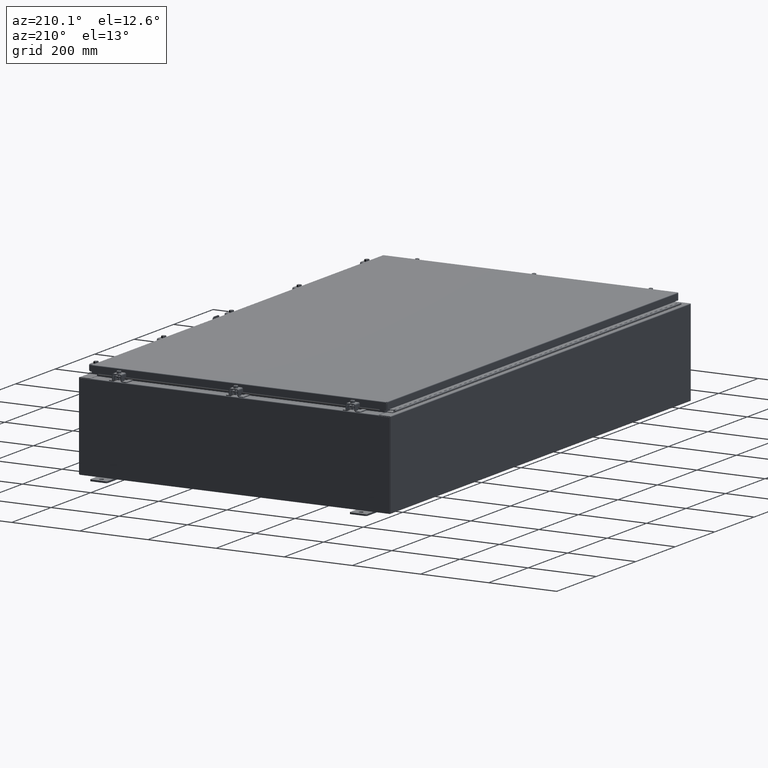
[diagram: clean part render]
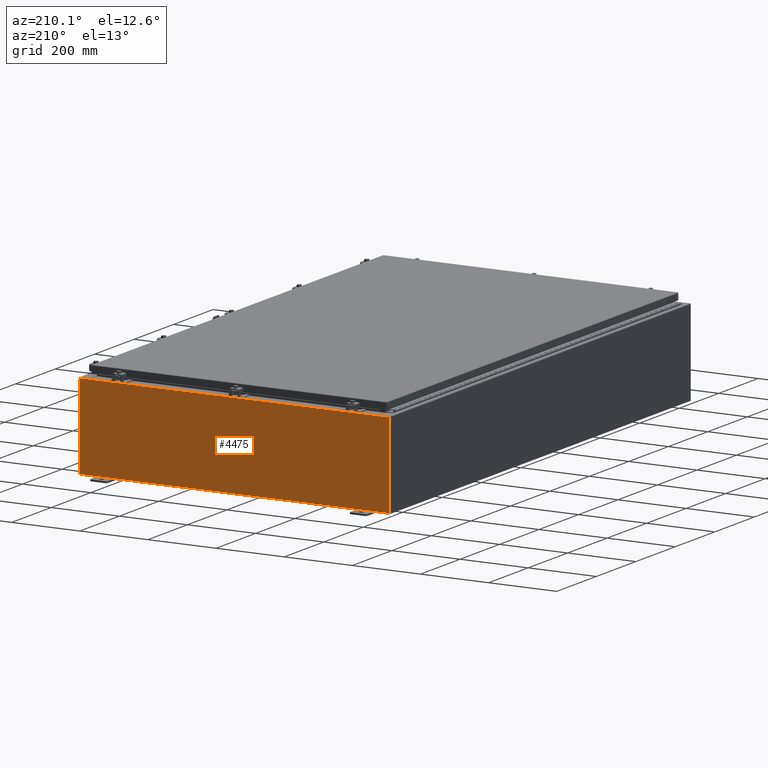
[diagram: same view with one face highlighted and labeled with its STEP entity id]
A machine part, auxiliary view. The second image highlights one B-rep face of the part: STEP entity #4475.
In plain terms, the highlighted planar face has unit normal (0, -1, 0).
Its self-contained STEP definition (entity closure, byte-faithful):
#69 = EDGE_CURVE ( 'NONE', #40341, #46954, #17294, .T. ) ;
#1077 = DIRECTION ( 'NONE',  ( 0.0000000000000000000, 0.0000000000000000000, -1.000000000000000000 ) ) ;
#1333 = DIRECTION ( 'NONE',  ( -1.000000000000000000, -0.0000000000000000000, -0.0000000000000000000 ) ) ;
#1643 = EDGE_CURVE ( 'NONE', #46954, #8012, #55916, .T. ) ;
#2035 = CARTESIAN_POINT ( 'NONE',  ( 0.0000000000000000000, 0.0000000000000000000, 0.0000000000000000000 ) ) ;
#2631 = VERTEX_POINT ( 'NONE', #16885 ) ;
#3476 = VERTEX_POINT ( 'NONE', #55187 ) ;
#3629 = EDGE_CURVE ( 'NONE', #24777, #24023, #13257, .T. ) ;
#4475 = ADVANCED_FACE ( 'NONE', ( #28728 ), #22452, .F. ) ;
#4685 = DIRECTION ( 'NONE',  ( 0.0000000000000000000, -1.000000000000000000, 0.0000000000000000000 ) ) ;
#4847 = DIRECTION ( 'NONE',  ( 0.0000000000000000000, -0.0000000000000000000, -1.000000000000000000 ) ) ;
#5401 = VERTEX_POINT ( 'NONE', #9507 ) ;
#5509 = EDGE_CURVE ( 'NONE', #40023, #40341, #6030, .T. ) ;
#5678 = LINE ( 'NONE', #44093, #43744 ) ;
#6030 = LINE ( 'NONE', #16554, #30893 ) ;
#6190 = VECTOR ( 'NONE', #15884, 39.37007874015748100 ) ;
#6370 = VERTEX_POINT ( 'NONE', #37216 ) ;
#7208 = ORIENTED_EDGE ( 'NONE', *, *, #5509, .F. ) ;
#8012 = VERTEX_POINT ( 'NONE', #53331 ) ;
#8225 = LINE ( 'NONE', #27257, #59580 ) ;
#8717 = CARTESIAN_POINT ( 'NONE',  ( -17.92530000000000000, 0.0000000000000000000, -4.925300000000000000 ) ) ;
#9507 = CARTESIAN_POINT ( 'NONE',  ( 17.92530000000000000, 0.0000000000000000000, 4.925300000000000000 ) ) ;
#10243 = ORIENTED_EDGE ( 'NONE', *, *, #56975, .T. ) ;
#10277 = CARTESIAN_POINT ( 'NONE',  ( 16.67455000000000700, 0.0000000000000000000, 4.925300000000000000 ) ) ;
#11102 = VERTEX_POINT ( 'NONE', #51875 ) ;
#12860 = DIRECTION ( 'NONE',  ( -0.0000000000000000000, 1.000000000000000000, -0.0000000000000000000 ) ) ;
#13257 = LINE ( 'NONE', #51269, #38115 ) ;
#15884 = DIRECTION ( 'NONE',  ( 1.000000000000000000, 0.0000000000000000000, 0.0000000000000000000 ) ) ;
#16554 = CARTESIAN_POINT ( 'NONE',  ( 16.67454999999957700, -0.0000000000000000000, -1.447541957108341500E-012 ) ) ;
#16827 = LINE ( 'NONE', #35268, #54892 ) ;
#16885 = CARTESIAN_POINT ( 'NONE',  ( -16.63720000000000400, -0.0000000000000000000, 4.874950000000000100 ) ) ;
#17294 = CIRCLE ( 'NONE', #51904, 0.01867499999999949400 ) ;
#17576 = DIRECTION ( 'NONE',  ( 0.0000000000000000000, 0.0000000000000000000, -1.000000000000000000 ) ) ;
#17969 = DIRECTION ( 'NONE',  ( 0.0000000000000000000, 0.0000000000000000000, -1.000000000000000000 ) ) ;
#18190 = EDGE_LOOP ( 'NONE', ( #26037, #31885, #48730, #30587, #52754, #60473, #7208, #18722, #10243, #46180, #64196, #43575 ) ) ;
#18722 = ORIENTED_EDGE ( 'NONE', *, *, #20761, .T. ) ;
#20420 = CARTESIAN_POINT ( 'NONE',  ( 16.63720000000000400, 0.0000000000000000000, 0.0000000000000000000 ) ) ;
#20720 = CARTESIAN_POINT ( 'NONE',  ( -17.92530000000000000, 0.0000000000000000000, 4.925300000000000000 ) ) ;
#20761 = EDGE_CURVE ( 'NONE', #40023, #5401, #5678, .T. ) ;
#21642 = DIRECTION ( 'NONE',  ( 1.000000000000000000, 0.0000000000000000000, 0.0000000000000000000 ) ) ;
#22452 = PLANE ( 'NONE',  #29577 ) ;
#23159 = CARTESIAN_POINT ( 'NONE',  ( -17.92530000000000000, 0.0000000000000000000, 4.925300000000000000 ) ) ;
#23519 = CARTESIAN_POINT ( 'NONE',  ( 16.67455000000000000, 0.0000000000000000000, 4.874950000000000100 ) ) ;
#24023 = VERTEX_POINT ( 'NONE', #23159 ) ;
#24777 = VERTEX_POINT ( 'NONE', #8717 ) ;
#26037 = ORIENTED_EDGE ( 'NONE', *, *, #51365, .F. ) ;
#26419 = LINE ( 'NONE', #20720, #6190 ) ;
#27257 = CARTESIAN_POINT ( 'NONE',  ( -16.63720000000000400, -0.0000000000000000000, 0.0000000000000000000 ) ) ;
#27849 = VECTOR ( 'NONE', #37144, 39.37007874015748100 ) ;
#28728 = FACE_OUTER_BOUND ( 'NONE', #18190, .T. ) ;
#29577 = AXIS2_PLACEMENT_3D ( 'NONE', #2035, #4685, #4847 ) ;
#30220 = EDGE_CURVE ( 'NONE', #6370, #2631, #8225, .T. ) ;
#30587 = ORIENTED_EDGE ( 'NONE', *, *, #57943, .T. ) ;
#30589 = DIRECTION ( 'NONE',  ( 1.000000000000000000, 0.0000000000000000000, 0.0000000000000000000 ) ) ;
#30893 = VECTOR ( 'NONE', #61774, 39.37007874015748100 ) ;
#31647 = LINE ( 'NONE', #36146, #56587 ) ;
#31885 = ORIENTED_EDGE ( 'NONE', *, *, #56408, .F. ) ;
#35268 = CARTESIAN_POINT ( 'NONE',  ( -16.67455000000000000, -0.0000000000000000000, 0.0000000000000000000 ) ) ;
#35887 = CIRCLE ( 'NONE', #41673, 0.01867499999999949400 ) ;
#36146 = CARTESIAN_POINT ( 'NONE',  ( -17.92530000000000000, 0.0000000000000000000, -4.925300000000000000 ) ) ;
#36585 = LINE ( 'NONE', #47655, #51353 ) ;
#37144 = DIRECTION ( 'NONE',  ( 0.0000000000000000000, 0.0000000000000000000, 1.000000000000000000 ) ) ;
#37216 = CARTESIAN_POINT ( 'NONE',  ( -16.63720000000000400, -7.171100983368691200E-016, 4.912300000000000100 ) ) ;
#38115 = VECTOR ( 'NONE', #57411, 39.37007874015748100 ) ;
#40023 = VERTEX_POINT ( 'NONE', #10277 ) ;
#40280 = DIRECTION ( 'NONE',  ( 0.0000000000000000000, 0.0000000000000000000, 1.000000000000000000 ) ) ;
#40341 = VERTEX_POINT ( 'NONE', #23519 ) ;
#40400 = CARTESIAN_POINT ( 'NONE',  ( -16.63720000000000400, -7.171100983368691200E-016, 4.912300000000000100 ) ) ;
#41673 = AXIS2_PLACEMENT_3D ( 'NONE', #42535, #12860, #47514 ) ;
#42535 = CARTESIAN_POINT ( 'NONE',  ( -16.65587500000000200, 0.0000000000000000000, 4.874950000000000100 ) ) ;
#43575 = ORIENTED_EDGE ( 'NONE', *, *, #48241, .T. ) ;
#43744 = VECTOR ( 'NONE', #21642, 39.37007874015748100 ) ;
#44093 = CARTESIAN_POINT ( 'NONE',  ( -17.92530000000000000, 0.0000000000000000000, 4.925300000000000000 ) ) ;
#46180 = ORIENTED_EDGE ( 'NONE', *, *, #59621, .T. ) ;
#46519 = VECTOR ( 'NONE', #30589, 39.37007874015748100 ) ;
#46738 = VERTEX_POINT ( 'NONE', #64433 ) ;
#46954 = VERTEX_POINT ( 'NONE', #61169 ) ;
#47514 = DIRECTION ( 'NONE',  ( 0.0000000000000000000, 0.0000000000000000000, -1.000000000000000000 ) ) ;
#47547 = DIRECTION ( 'NONE',  ( -0.0000000000000000000, 1.000000000000000000, -0.0000000000000000000 ) ) ;
#47655 = CARTESIAN_POINT ( 'NONE',  ( 17.92530000000000000, 0.0000000000000000000, 4.925300000000000000 ) ) ;
#48241 = EDGE_CURVE ( 'NONE', #24023, #11102, #26419, .T. ) ;
#48730 = ORIENTED_EDGE ( 'NONE', *, *, #30220, .F. ) ;
#51269 = CARTESIAN_POINT ( 'NONE',  ( -17.92530000000000000, 0.0000000000000000000, 4.925300000000000000 ) ) ;
#51353 = VECTOR ( 'NONE', #17969, 39.37007874015748100 ) ;
#51365 = EDGE_CURVE ( 'NONE', #46738, #11102, #16827, .T. ) ;
#51875 = CARTESIAN_POINT ( 'NONE',  ( -16.67455000000000000, 0.0000000000000000000, 4.925300000000000000 ) ) ;
#51904 = AXIS2_PLACEMENT_3D ( 'NONE', #59660, #47547, #1077 ) ;
#52754 = ORIENTED_EDGE ( 'NONE', *, *, #1643, .F. ) ;
#53331 = CARTESIAN_POINT ( 'NONE',  ( 16.63720000000000400, 0.0000000000000000000, 4.912300000000000100 ) ) ;
#54892 = VECTOR ( 'NONE', #40280, 39.37007874015748100 ) ;
#55187 = CARTESIAN_POINT ( 'NONE',  ( 17.92530000000000000, 0.0000000000000000000, -4.925300000000000000 ) ) ;
#55916 = LINE ( 'NONE', #20420, #27849 ) ;
#56408 = EDGE_CURVE ( 'NONE', #2631, #46738, #35887, .T. ) ;
#56587 = VECTOR ( 'NONE', #1333, 39.37007874015748100 ) ;
#56975 = EDGE_CURVE ( 'NONE', #5401, #3476, #36585, .T. ) ;
#57411 = DIRECTION ( 'NONE',  ( -0.0000000000000000000, -0.0000000000000000000, 1.000000000000000000 ) ) ;
#57943 = EDGE_CURVE ( 'NONE', #6370, #8012, #59839, .T. ) ;
#59580 = VECTOR ( 'NONE', #17576, 39.37007874015748100 ) ;
#59621 = EDGE_CURVE ( 'NONE', #3476, #24777, #31647, .T. ) ;
#59660 = CARTESIAN_POINT ( 'NONE',  ( 16.65587500000000200, 0.0000000000000000000, 4.874950000000000100 ) ) ;
#59839 = LINE ( 'NONE', #40400, #46519 ) ;
#60473 = ORIENTED_EDGE ( 'NONE', *, *, #69, .F. ) ;
#61169 = CARTESIAN_POINT ( 'NONE',  ( 16.63720000000000400, 0.0000000000000000000, 4.874950000000000100 ) ) ;
#61774 = DIRECTION ( 'NONE',  ( -8.681145560800009800E-014, 0.0000000000000000000, -1.000000000000000000 ) ) ;
#64196 = ORIENTED_EDGE ( 'NONE', *, *, #3629, .T. ) ;
#64433 = CARTESIAN_POINT ( 'NONE',  ( -16.67455000000000000, 0.0000000000000000000, 4.874950000000000100 ) ) ;